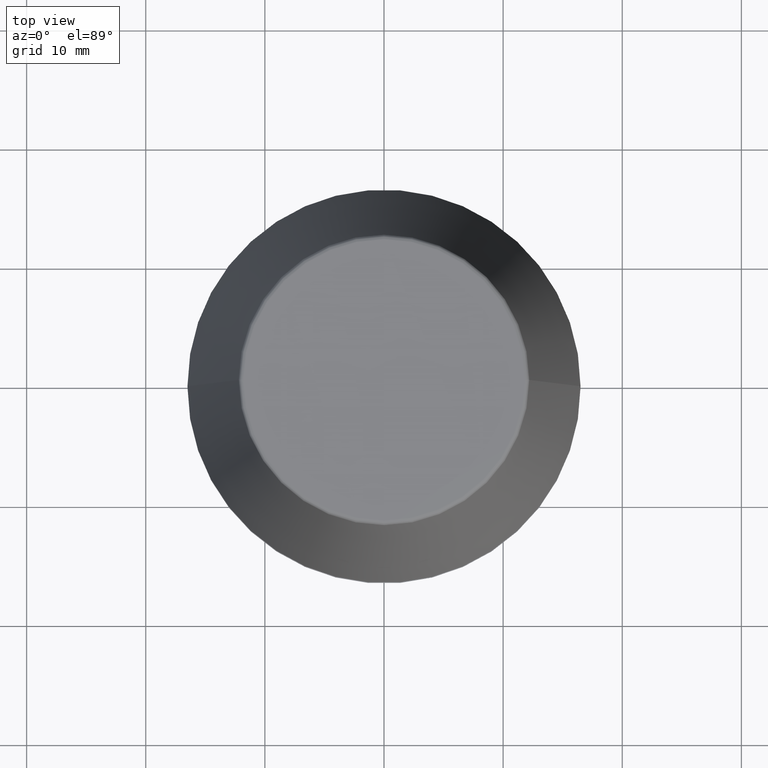
[diagram: clean part render]
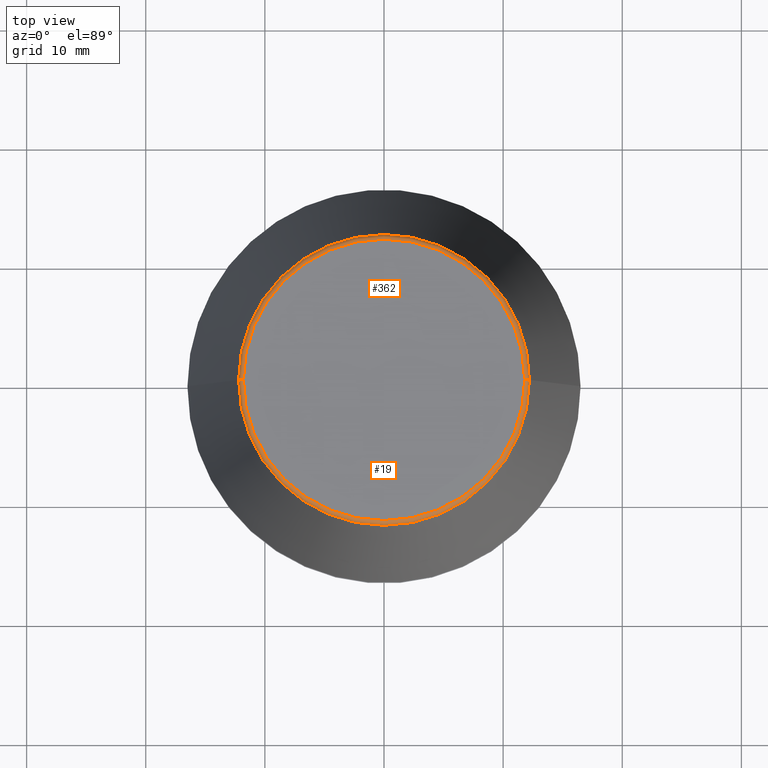
[diagram: same view with one multi-face feature highlighted, each face labeled with its STEP entity id]
A machine part, top view. The highlighted faces form ONE feature: a constant-radius fillet chain: 2 tangent blend faces with common blend radius 0.4 mm. The faces share edges in the B-rep.
Their STEP definitions:
[1] entity #19 (Torus):
#13 = CARTESIAN_POINT ( 'NONE',  ( 11.80989888411031400, 0.0000000000000000000, 39.60000000000000100 ) ) ;
#15 = AXIS2_PLACEMENT_3D ( 'NONE', #350, #219, #184 ) ;
#19 = ADVANCED_FACE ( 'NONE', ( #283 ), #242, .T. ) ;
#28 = CARTESIAN_POINT ( 'NONE',  ( 0.0000000000000000000, 0.0000000000000000000, 40.00000000000000700 ) ) ;
#36 = EDGE_CURVE ( 'NONE', #247, #327, #231, .T. ) ;
#51 = CARTESIAN_POINT ( 'NONE',  ( -11.80989888411031400, 1.470550059081603400E-015, 40.00000000000000700 ) ) ;
#57 = CARTESIAN_POINT ( 'NONE',  ( 0.0000000000000000000, 0.0000000000000000000, 39.65566924038402900 ) ) ;
#60 = CARTESIAN_POINT ( 'NONE',  ( -11.80989888411031400, 1.446295486667959300E-015, 39.60000000000000100 ) ) ;
#82 = ORIENTED_EDGE ( 'NONE', *, *, #95, .F. ) ;
#95 = EDGE_CURVE ( 'NONE', #327, #269, #154, .T. ) ;
#111 = AXIS2_PLACEMENT_3D ( 'NONE', #13, #196, #349 ) ;
#116 = CIRCLE ( 'NONE', #262, 12.20600611160694300 ) ;
#118 = DIRECTION ( 'NONE',  ( 1.000000000000000000, 0.0000000000000000000, 0.0000000000000000000 ) ) ;
#120 = AXIS2_PLACEMENT_3D ( 'NONE', #60, #218, #158 ) ;
#122 = EDGE_CURVE ( 'NONE', #247, #234, #116, .T. ) ;
#154 = CIRCLE ( 'NONE', #372, 11.80989888411031400 ) ;
#156 = ORIENTED_EDGE ( 'NONE', *, *, #195, .T. ) ;
#158 = DIRECTION ( 'NONE',  ( -1.000000000000000000, 1.224646799147352500E-016, 0.0000000000000000000 ) ) ;
#184 = DIRECTION ( 'NONE',  ( 1.000000000000000000, 0.0000000000000000000, 0.0000000000000000000 ) ) ;
#185 = CIRCLE ( 'NONE', #111, 0.4000000000000045200 ) ;
#195 = EDGE_CURVE ( 'NONE', #234, #269, #185, .T. ) ;
#196 = DIRECTION ( 'NONE',  ( 0.0000000000000000000, -1.000000000000000000, 0.0000000000000000000 ) ) ;
#218 = DIRECTION ( 'NONE',  ( 1.224646799147353200E-016, 1.000000000000000000, 0.0000000000000000000 ) ) ;
#219 = DIRECTION ( 'NONE',  ( -0.0000000000000000000, -0.0000000000000000000, 1.000000000000000000 ) ) ;
#231 = CIRCLE ( 'NONE', #120, 0.4000000000000028000 ) ;
#234 = VERTEX_POINT ( 'NONE', #339 ) ;
#242 = TOROIDAL_SURFACE ( 'NONE', #15, 11.80989888411031400, 0.4000000000000026900 ) ;
#245 = DIRECTION ( 'NONE',  ( -0.0000000000000000000, -0.0000000000000000000, 1.000000000000000000 ) ) ;
#247 = VERTEX_POINT ( 'NONE', #363 ) ;
#262 = AXIS2_PLACEMENT_3D ( 'NONE', #57, #331, #304 ) ;
#269 = VERTEX_POINT ( 'NONE', #281 ) ;
#270 = EDGE_LOOP ( 'NONE', ( #343, #354, #156, #82 ) ) ;
#281 = CARTESIAN_POINT ( 'NONE',  ( 11.80989888411031400, 0.0000000000000000000, 40.00000000000000700 ) ) ;
#283 = FACE_OUTER_BOUND ( 'NONE', #270, .T. ) ;
#304 = DIRECTION ( 'NONE',  ( 1.000000000000000000, 0.0000000000000000000, 0.0000000000000000000 ) ) ;
#327 = VERTEX_POINT ( 'NONE', #51 ) ;
#331 = DIRECTION ( 'NONE',  ( -0.0000000000000000000, -0.0000000000000000000, 1.000000000000000000 ) ) ;
#339 = CARTESIAN_POINT ( 'NONE',  ( 12.20600611160694300, 1.757755848304969800E-015, 39.65566924038402900 ) ) ;
#343 = ORIENTED_EDGE ( 'NONE', *, *, #36, .F. ) ;
#349 = DIRECTION ( 'NONE',  ( 0.0000000000000000000, 0.0000000000000000000, -1.000000000000000000 ) ) ;
#350 = CARTESIAN_POINT ( 'NONE',  ( 0.0000000000000000000, 0.0000000000000000000, 39.60000000000000100 ) ) ;
#354 = ORIENTED_EDGE ( 'NONE', *, *, #122, .T. ) ;
#363 = CARTESIAN_POINT ( 'NONE',  ( -12.20600611160694300, 0.0000000000000000000, 39.65566924038402900 ) ) ;
#372 = AXIS2_PLACEMENT_3D ( 'NONE', #28, #245, #118 ) ;
[2] entity #362 (Torus):
#13 = CARTESIAN_POINT ( 'NONE',  ( 11.80989888411031400, 0.0000000000000000000, 39.60000000000000100 ) ) ;
#36 = EDGE_CURVE ( 'NONE', #247, #327, #231, .T. ) ;
#51 = CARTESIAN_POINT ( 'NONE',  ( -11.80989888411031400, 1.470550059081603400E-015, 40.00000000000000700 ) ) ;
#60 = CARTESIAN_POINT ( 'NONE',  ( -11.80989888411031400, 1.446295486667959300E-015, 39.60000000000000100 ) ) ;
#66 = EDGE_CURVE ( 'NONE', #234, #247, #328, .T. ) ;
#84 = DIRECTION ( 'NONE',  ( -0.0000000000000000000, -0.0000000000000000000, 1.000000000000000000 ) ) ;
#111 = AXIS2_PLACEMENT_3D ( 'NONE', #13, #196, #349 ) ;
#120 = AXIS2_PLACEMENT_3D ( 'NONE', #60, #218, #158 ) ;
#144 = CARTESIAN_POINT ( 'NONE',  ( 0.0000000000000000000, 0.0000000000000000000, 40.00000000000000700 ) ) ;
#153 = DIRECTION ( 'NONE',  ( 1.000000000000000000, 0.0000000000000000000, 0.0000000000000000000 ) ) ;
#158 = DIRECTION ( 'NONE',  ( -1.000000000000000000, 1.224646799147352500E-016, 0.0000000000000000000 ) ) ;
#172 = DIRECTION ( 'NONE',  ( 1.000000000000000000, 0.0000000000000000000, 0.0000000000000000000 ) ) ;
#178 = DIRECTION ( 'NONE',  ( -0.0000000000000000000, -0.0000000000000000000, 1.000000000000000000 ) ) ;
#185 = CIRCLE ( 'NONE', #111, 0.4000000000000045200 ) ;
#195 = EDGE_CURVE ( 'NONE', #234, #269, #185, .T. ) ;
#196 = DIRECTION ( 'NONE',  ( 0.0000000000000000000, -1.000000000000000000, 0.0000000000000000000 ) ) ;
#199 = AXIS2_PLACEMENT_3D ( 'NONE', #144, #325, #379 ) ;
#205 = ORIENTED_EDGE ( 'NONE', *, *, #36, .T. ) ;
#206 = FACE_OUTER_BOUND ( 'NONE', #291, .T. ) ;
#218 = DIRECTION ( 'NONE',  ( 1.224646799147353200E-016, 1.000000000000000000, 0.0000000000000000000 ) ) ;
#231 = CIRCLE ( 'NONE', #120, 0.4000000000000028000 ) ;
#232 = AXIS2_PLACEMENT_3D ( 'NONE', #361, #84, #172 ) ;
#234 = VERTEX_POINT ( 'NONE', #339 ) ;
#241 = ORIENTED_EDGE ( 'NONE', *, *, #195, .F. ) ;
#247 = VERTEX_POINT ( 'NONE', #363 ) ;
#255 = CIRCLE ( 'NONE', #199, 11.80989888411031400 ) ;
#269 = VERTEX_POINT ( 'NONE', #281 ) ;
#281 = CARTESIAN_POINT ( 'NONE',  ( 11.80989888411031400, 0.0000000000000000000, 40.00000000000000700 ) ) ;
#286 = AXIS2_PLACEMENT_3D ( 'NONE', #305, #178, #153 ) ;
#291 = EDGE_LOOP ( 'NONE', ( #302, #205, #385, #241 ) ) ;
#302 = ORIENTED_EDGE ( 'NONE', *, *, #66, .T. ) ;
#305 = CARTESIAN_POINT ( 'NONE',  ( 0.0000000000000000000, 0.0000000000000000000, 39.65566924038402900 ) ) ;
#325 = DIRECTION ( 'NONE',  ( -0.0000000000000000000, -0.0000000000000000000, 1.000000000000000000 ) ) ;
#327 = VERTEX_POINT ( 'NONE', #51 ) ;
#328 = CIRCLE ( 'NONE', #286, 12.20600611160694300 ) ;
#339 = CARTESIAN_POINT ( 'NONE',  ( 12.20600611160694300, 1.757755848304969800E-015, 39.65566924038402900 ) ) ;
#348 = TOROIDAL_SURFACE ( 'NONE', #232, 11.80989888411031400, 0.4000000000000026900 ) ;
#349 = DIRECTION ( 'NONE',  ( 0.0000000000000000000, 0.0000000000000000000, -1.000000000000000000 ) ) ;
#358 = EDGE_CURVE ( 'NONE', #269, #327, #255, .T. ) ;
#361 = CARTESIAN_POINT ( 'NONE',  ( 0.0000000000000000000, 0.0000000000000000000, 39.60000000000000100 ) ) ;
#362 = ADVANCED_FACE ( 'NONE', ( #206 ), #348, .T. ) ;
#363 = CARTESIAN_POINT ( 'NONE',  ( -12.20600611160694300, 0.0000000000000000000, 39.65566924038402900 ) ) ;
#379 = DIRECTION ( 'NONE',  ( 1.000000000000000000, 0.0000000000000000000, 0.0000000000000000000 ) ) ;
#385 = ORIENTED_EDGE ( 'NONE', *, *, #358, .F. ) ;